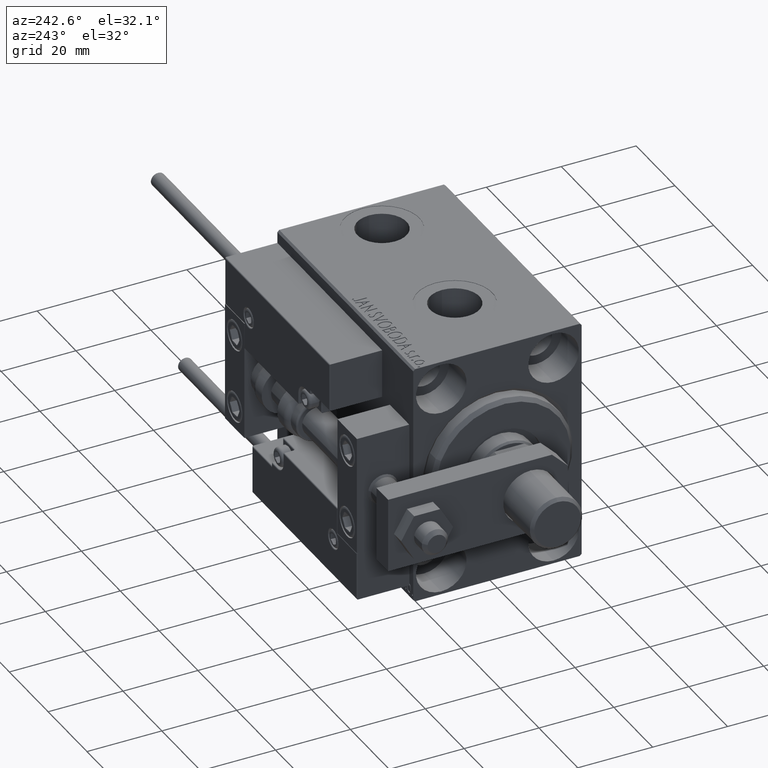
[diagram: clean part render]
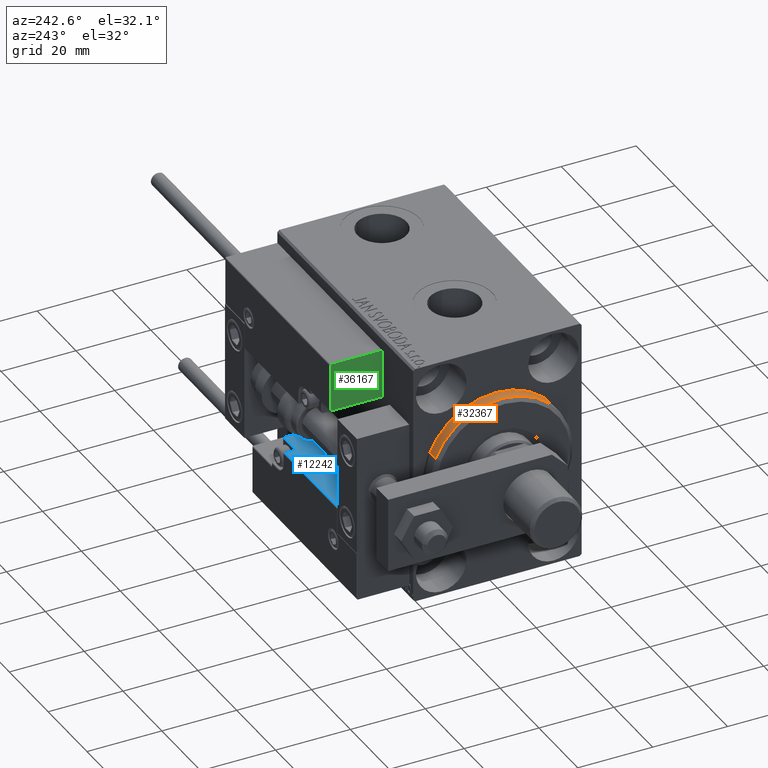
[diagram: same view with three faces highlighted in distinct colors, each labeled with its STEP entity id]
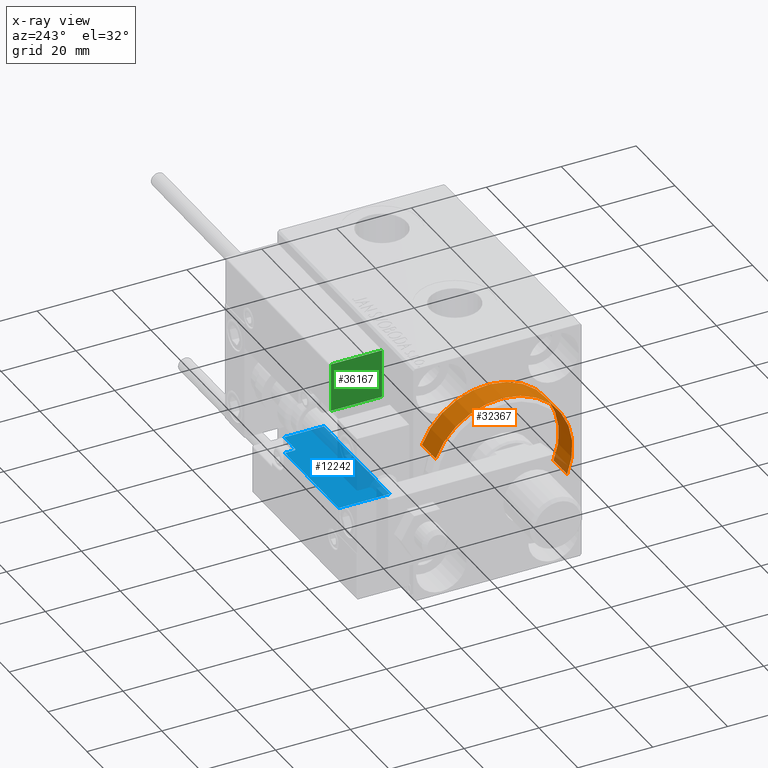
[diagram: x-ray of the same camera — body ghosted, the three highlighted faces saturated]
A machine part, auxiliary view with three faces highlighted in distinct colors.
The next image is the same camera in x-ray (body ghosted, the three faces saturated) — at least one of them is partly hidden behind the body in this view.
Their STEP definitions:

[orange] entity #32367 — the highlighted cylindrical surface (partial cylindrical patch) has radius 19 mm, axis along (1, 0, 0).
#2472 = ORIENTED_EDGE ( 'NONE', *, *, #36436, .T. ) ;
#4103 = DIRECTION ( 'NONE',  ( 0.000000000000000000, 0.000000000000000000, 1.000000000000000000 ) ) ;
#5098 = ORIENTED_EDGE ( 'NONE', *, *, #38750, .F. ) ;
#5907 = DIRECTION ( 'NONE',  ( -1.000000000000000000, -0.000000000000000000, -0.000000000000000000 ) ) ;
#6702 = AXIS2_PLACEMENT_3D ( 'NONE', #13875, #29307, #21102 ) ;
#7235 = EDGE_LOOP ( 'NONE', ( #5098, #50737, #2472, #37133 ) ) ;
#7406 = DIRECTION ( 'NONE',  ( 0.000000000000000000, 0.000000000000000000, -1.000000000000000000 ) ) ;
#10349 = DIRECTION ( 'NONE',  ( -1.000000000000000000, -0.000000000000000000, -0.000000000000000000 ) ) ;
#10467 = CARTESIAN_POINT ( 'NONE',  ( 1.999999999999992228, 2.326828918379970970E-15, -19.00000000000000000 ) ) ;
#13875 = CARTESIAN_POINT ( 'NONE',  ( 3.000000000000000000, 0.000000000000000000, 0.000000000000000000 ) ) ;
#14363 = LINE ( 'NONE', #37742, #32131 ) ;
#15193 = VERTEX_POINT ( 'NONE', #36457 ) ;
#16888 = CARTESIAN_POINT ( 'NONE',  ( -5.000000000000000000, 0.000000000000000000, 19.00000000000000000 ) ) ;
#18188 = CIRCLE ( 'NONE', #44413, 19.00000000000000000 ) ;
#18758 = CARTESIAN_POINT ( 'NONE',  ( 1.999999999999992228, 0.000000000000000000, 19.00000000000000000 ) ) ;
#19536 = CARTESIAN_POINT ( 'NONE',  ( -5.000000000000000000, 0.000000000000000000, 0.000000000000000000 ) ) ;
#20654 = VERTEX_POINT ( 'NONE', #10467 ) ;
#21102 = DIRECTION ( 'NONE',  ( 0.000000000000000000, 0.000000000000000000, 1.000000000000000000 ) ) ;
#23601 = CARTESIAN_POINT ( 'NONE',  ( 1.999999999999992228, 0.000000000000000000, 0.000000000000000000 ) ) ;
#29307 = DIRECTION ( 'NONE',  ( -1.000000000000000000, -0.000000000000000000, -0.000000000000000000 ) ) ;
#32131 = VECTOR ( 'NONE', #5907, 1000.000000000000000 ) ;
#32136 = EDGE_CURVE ( 'NONE', #20654, #38761, #18188, .T. ) ;
#32367 = ADVANCED_FACE ( 'NONE', ( #49046 ), #40598, .T. ) ;
#36379 = VECTOR ( 'NONE', #10349, 1000.000000000000000 ) ;
#36436 = EDGE_CURVE ( 'NONE', #38761, #37161, #38093, .T. ) ;
#36457 = CARTESIAN_POINT ( 'NONE',  ( -5.000000000000000000, 2.326828918379970970E-15, -19.00000000000000000 ) ) ;
#37133 = ORIENTED_EDGE ( 'NONE', *, *, #46316, .F. ) ;
#37161 = VERTEX_POINT ( 'NONE', #16888 ) ;
#37742 = CARTESIAN_POINT ( 'NONE',  ( 3.000000000000000000, 2.326828918379970970E-15, -19.00000000000000000 ) ) ;
#37945 = CIRCLE ( 'NONE', #44489, 19.00000000000000000 ) ;
#38093 = LINE ( 'NONE', #49614, #36379 ) ;
#38750 = EDGE_CURVE ( 'NONE', #20654, #15193, #14363, .T. ) ;
#38761 = VERTEX_POINT ( 'NONE', #18758 ) ;
#39292 = DIRECTION ( 'NONE',  ( -1.000000000000000000, 0.000000000000000000, 0.000000000000000000 ) ) ;
#40598 = CYLINDRICAL_SURFACE ( 'NONE', #6702, 19.00000000000000000 ) ;
#44413 = AXIS2_PLACEMENT_3D ( 'NONE', #23601, #50527, #7406 ) ;
#44489 = AXIS2_PLACEMENT_3D ( 'NONE', #19536, #39292, #4103 ) ;
#46316 = EDGE_CURVE ( 'NONE', #15193, #37161, #37945, .T. ) ;
#49046 = FACE_OUTER_BOUND ( 'NONE', #7235, .T. ) ;
#49614 = CARTESIAN_POINT ( 'NONE',  ( 3.000000000000000000, 0.000000000000000000, 19.00000000000000000 ) ) ;
#50527 = DIRECTION ( 'NONE',  ( -1.000000000000000000, 0.000000000000000000, 0.000000000000000000 ) ) ;
#50737 = ORIENTED_EDGE ( 'NONE', *, *, #32136, .T. ) ;

[blue] entity #12242 — the highlighted planar face has unit normal (-0, -0, -1).
#562 = DIRECTION ( 'NONE',  ( 0.000000000000000000, -0.000000000000000000, 1.000000000000000000 ) ) ;
#1618 = LINE ( 'NONE', #32215, #24381 ) ;
#1845 = CARTESIAN_POINT ( 'NONE',  ( -16.99999999999999289, 3.252606517456513302E-15, 0.000000000000000000 ) ) ;
#4420 = FACE_OUTER_BOUND ( 'NONE', #16073, .T. ) ;
#4480 = ORIENTED_EDGE ( 'NONE', *, *, #11266, .T. ) ;
#4679 = DIRECTION ( 'NONE',  ( 0.000000000000000000, 1.000000000000000000, 0.000000000000000000 ) ) ;
#5759 = VECTOR ( 'NONE', #41524, 1000.000000000000000 ) ;
#5777 = ORIENTED_EDGE ( 'NONE', *, *, #9289, .F. ) ;
#7116 = ORIENTED_EDGE ( 'NONE', *, *, #19407, .T. ) ;
#7751 = CARTESIAN_POINT ( 'NONE',  ( 16.99999999999999289, 3.252606517456513302E-15, 10.69999999999999929 ) ) ;
#8753 = CARTESIAN_POINT ( 'NONE',  ( 16.99999999999999289, 3.252606517456513302E-15, 0.000000000000000000 ) ) ;
#9057 = DIRECTION ( 'NONE',  ( 1.000000000000000000, 0.000000000000000000, 0.000000000000000000 ) ) ;
#9289 = EDGE_CURVE ( 'NONE', #13758, #43173, #19810, .T. ) ;
#9803 = LINE ( 'NONE', #1845, #28023 ) ;
#10137 = CIRCLE ( 'NONE', #50305, 0.5999999999999998668 ) ;
#10314 = ORIENTED_EDGE ( 'NONE', *, *, #13569, .T. ) ;
#11266 = EDGE_CURVE ( 'NONE', #33404, #25449, #16734, .T. ) ;
#11305 = CARTESIAN_POINT ( 'NONE',  ( -16.99999999999999289, 3.252606517456513302E-15, 13.70000000000000107 ) ) ;
#11585 = CARTESIAN_POINT ( 'NONE',  ( 10.70000000000000107, 3.252606517456513302E-15, 13.70000000000000107 ) ) ;
#11826 = CARTESIAN_POINT ( 'NONE',  ( 16.99999999999999289, 3.252606517456513302E-15, 14.00000000000000000 ) ) ;
#12100 = ORIENTED_EDGE ( 'NONE', *, *, #25245, .T. ) ;
#12242 = ADVANCED_FACE ( 'NONE', ( #4420 ), #23953, .F. ) ;
#12252 = CARTESIAN_POINT ( 'NONE',  ( 11.29999999999999893, 3.252606517456513302E-15, 11.29999999999999893 ) ) ;
#13569 = EDGE_CURVE ( 'NONE', #24704, #33404, #1618, .T. ) ;
#13758 = VERTEX_POINT ( 'NONE', #7751 ) ;
#13919 = VERTEX_POINT ( 'NONE', #36006 ) ;
#16073 = EDGE_LOOP ( 'NONE', ( #5777, #12100, #33713, #7116, #10314, #4480, #39631 ) ) ;
#16734 = LINE ( 'NONE', #20850, #19386 ) ;
#19386 = VECTOR ( 'NONE', #31637, 1000.000000000000000 ) ;
#19407 = EDGE_CURVE ( 'NONE', #47455, #24704, #40102, .T. ) ;
#19810 = LINE ( 'NONE', #11826, #30157 ) ;
#20100 = CARTESIAN_POINT ( 'NONE',  ( -16.99999999999999289, 3.252606517456513302E-15, 14.00000000000000000 ) ) ;
#20237 = DIRECTION ( 'NONE',  ( 0.000000000000000000, 0.000000000000000000, 1.000000000000000000 ) ) ;
#20600 = CARTESIAN_POINT ( 'NONE',  ( 10.70000000000000107, 3.252606517456513302E-15, 14.00000000000000000 ) ) ;
#20850 = CARTESIAN_POINT ( 'NONE',  ( -16.99999999999999289, 3.252606517456513302E-15, 14.00000000000000000 ) ) ;
#23604 = VECTOR ( 'NONE', #36254, 1000.000000000000000 ) ;
#23953 = PLANE ( 'NONE',  #28445 ) ;
#24381 = VECTOR ( 'NONE', #48351, 1000.000000000000000 ) ;
#24704 = VERTEX_POINT ( 'NONE', #11585 ) ;
#25245 = EDGE_CURVE ( 'NONE', #13758, #13919, #30237, .T. ) ;
#25449 = VERTEX_POINT ( 'NONE', #44555 ) ;
#26904 = CARTESIAN_POINT ( 'NONE',  ( 11.00000000000000000, 3.252606517456513302E-15, 10.69999999999999929 ) ) ;
#28023 = VECTOR ( 'NONE', #9057, 1000.000000000000000 ) ;
#28445 = AXIS2_PLACEMENT_3D ( 'NONE', #20100, #4679, #562 ) ;
#30157 = VECTOR ( 'NONE', #42418, 1000.000000000000000 ) ;
#30237 = LINE ( 'NONE', #26904, #5759 ) ;
#31637 = DIRECTION ( 'NONE',  ( -0.000000000000000000, -0.000000000000000000, -1.000000000000000000 ) ) ;
#32215 = CARTESIAN_POINT ( 'NONE',  ( -16.99999999999999289, 3.252606517456513302E-15, 13.70000000000000107 ) ) ;
#33404 = VERTEX_POINT ( 'NONE', #11305 ) ;
#33713 = ORIENTED_EDGE ( 'NONE', *, *, #48526, .F. ) ;
#36006 = CARTESIAN_POINT ( 'NONE',  ( 11.29999999999999893, 3.252606517456513302E-15, 10.69999999999999929 ) ) ;
#36254 = DIRECTION ( 'NONE',  ( 0.000000000000000000, -0.000000000000000000, 1.000000000000000000 ) ) ;
#37575 = CARTESIAN_POINT ( 'NONE',  ( 10.70000000000000107, 3.252606517456513302E-15, 11.29999999999999893 ) ) ;
#39631 = ORIENTED_EDGE ( 'NONE', *, *, #42910, .T. ) ;
#40102 = LINE ( 'NONE', #20600, #23604 ) ;
#41524 = DIRECTION ( 'NONE',  ( -1.000000000000000000, 0.000000000000000000, -0.000000000000000000 ) ) ;
#42418 = DIRECTION ( 'NONE',  ( -0.000000000000000000, -0.000000000000000000, -1.000000000000000000 ) ) ;
#42824 = DIRECTION ( 'NONE',  ( -0.000000000000000000, -1.000000000000000000, -0.000000000000000000 ) ) ;
#42910 = EDGE_CURVE ( 'NONE', #25449, #43173, #9803, .T. ) ;
#43173 = VERTEX_POINT ( 'NONE', #8753 ) ;
#44555 = CARTESIAN_POINT ( 'NONE',  ( -16.99999999999999289, 3.252606517456513302E-15, 0.000000000000000000 ) ) ;
#47455 = VERTEX_POINT ( 'NONE', #37575 ) ;
#48351 = DIRECTION ( 'NONE',  ( -1.000000000000000000, 0.000000000000000000, -0.000000000000000000 ) ) ;
#48526 = EDGE_CURVE ( 'NONE', #47455, #13919, #10137, .T. ) ;
#50305 = AXIS2_PLACEMENT_3D ( 'NONE', #12252, #42824, #20237 ) ;

[green] entity #36167 — the highlighted planar face has unit normal (1, -0, -0).
#406 = EDGE_CURVE ( 'NONE', #28046, #35591, #24026, .T. ) ;
#426 = VECTOR ( 'NONE', #40425, 1000.000000000000000 ) ;
#559 = VECTOR ( 'NONE', #28469, 1000.000000000000000 ) ;
#1405 = ORIENTED_EDGE ( 'NONE', *, *, #25126, .T. ) ;
#1736 = LINE ( 'NONE', #16913, #42644 ) ;
#2579 = CARTESIAN_POINT ( 'NONE',  ( 27.00000000000006395, 20.00000000000001776, 0.000000000000000000 ) ) ;
#3611 = CARTESIAN_POINT ( 'NONE',  ( 27.00000000000006395, 7.000000000000007994, 13.70000000000000107 ) ) ;
#7583 = DIRECTION ( 'NONE',  ( -1.000000000000000000, 0.000000000000000000, 0.000000000000000000 ) ) ;
#11290 = LINE ( 'NONE', #27980, #17875 ) ;
#12528 = CARTESIAN_POINT ( 'NONE',  ( 27.00000000000006395, 7.000000000000007994, 0.000000000000000000 ) ) ;
#15190 = CARTESIAN_POINT ( 'NONE',  ( 27.00000000000006395, 20.00000000000001776, 13.70000000000000107 ) ) ;
#15878 = AXIS2_PLACEMENT_3D ( 'NONE', #19165, #7583, #23784 ) ;
#16913 = CARTESIAN_POINT ( 'NONE',  ( 27.00000000000006395, 7.000000000000007994, 13.70000000000000107 ) ) ;
#17066 = EDGE_CURVE ( 'NONE', #28512, #35591, #20263, .T. ) ;
#17875 = VECTOR ( 'NONE', #47219, 1000.000000000000000 ) ;
#18414 = ORIENTED_EDGE ( 'NONE', *, *, #17066, .T. ) ;
#18874 = EDGE_CURVE ( 'NONE', #50419, #28512, #11290, .T. ) ;
#19165 = CARTESIAN_POINT ( 'NONE',  ( 27.00000000000006395, 7.000000000000007994, 14.00000000000000000 ) ) ;
#20263 = LINE ( 'NONE', #12528, #559 ) ;
#23748 = CARTESIAN_POINT ( 'NONE',  ( 27.00000000000006395, 7.000000000000007994, 0.000000000000000000 ) ) ;
#23784 = DIRECTION ( 'NONE',  ( 0.000000000000000000, 0.000000000000000000, 1.000000000000000000 ) ) ;
#24026 = LINE ( 'NONE', #24777, #426 ) ;
#24777 = CARTESIAN_POINT ( 'NONE',  ( 27.00000000000006395, 20.00000000000001776, 14.00000000000000000 ) ) ;
#25126 = EDGE_CURVE ( 'NONE', #28046, #50419, #1736, .T. ) ;
#27980 = CARTESIAN_POINT ( 'NONE',  ( 27.00000000000006395, 7.000000000000007994, 14.00000000000000000 ) ) ;
#28046 = VERTEX_POINT ( 'NONE', #15190 ) ;
#28469 = DIRECTION ( 'NONE',  ( 0.000000000000000000, 1.000000000000000000, 0.000000000000000000 ) ) ;
#28512 = VERTEX_POINT ( 'NONE', #23748 ) ;
#31465 = EDGE_LOOP ( 'NONE', ( #47361, #1405, #42612, #18414 ) ) ;
#35591 = VERTEX_POINT ( 'NONE', #2579 ) ;
#36167 = ADVANCED_FACE ( 'NONE', ( #43539 ), #38917, .F. ) ;
#38917 = PLANE ( 'NONE',  #15878 ) ;
#40425 = DIRECTION ( 'NONE',  ( -0.000000000000000000, -0.000000000000000000, -1.000000000000000000 ) ) ;
#42612 = ORIENTED_EDGE ( 'NONE', *, *, #18874, .T. ) ;
#42644 = VECTOR ( 'NONE', #44366, 1000.000000000000000 ) ;
#43539 = FACE_OUTER_BOUND ( 'NONE', #31465, .T. ) ;
#44366 = DIRECTION ( 'NONE',  ( -0.000000000000000000, -1.000000000000000000, -0.000000000000000000 ) ) ;
#47219 = DIRECTION ( 'NONE',  ( -0.000000000000000000, -0.000000000000000000, -1.000000000000000000 ) ) ;
#47361 = ORIENTED_EDGE ( 'NONE', *, *, #406, .F. ) ;
#50419 = VERTEX_POINT ( 'NONE', #3611 ) ;